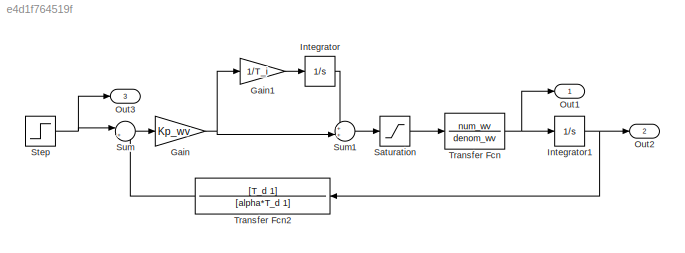
MODEL slx_e4d1f764519f
KIND model
CONFIG AbsTol = auto
CONFIG EnableMultiTasking = off
CONFIG FixedStep = auto
CONFIG MaxStep = auto
CONFIG MinStep = auto
CONFIG RelTol = 1e-3
CONFIG SampleTimeConstraint = Unconstrained
CONFIG Solver = VariableStepAuto
CONFIG SolverName = VariableStepAuto
CONFIG StartTime = 0.0
CONFIG StopTime = 20
BLOCK [Gain] Gain
  Gain = Kp_wv
  OutDataTypeStr = Inherit: Inherit via internal rule
  ParamDataTypeStr = Inherit: Inherit via internal rule
  SaturateOnIntegerOverflow = off
BLOCK [Gain] Gain1
  Gain = 1/T_i
  OutDataTypeStr = Inherit: Inherit via internal rule
  ParamDataTypeStr = Inherit: Inherit via internal rule
  SaturateOnIntegerOverflow = off
BLOCK [Integrator] Integrator
  LimitOutput = on
  LowerSaturationLimit = -3
  Ports = [1, 1]
  UpperSaturationLimit = +3
BLOCK [Integrator] Integrator1
  Ports = [1, 1]
BLOCK [Outport] Out1
  IconDisplay = Port number
  SignalName = Velocity
BLOCK [Outport] Out2
  IconDisplay = Port number
  Port = 2
  SignalName = Position
BLOCK [Outport] Out3
  IconDisplay = Port number
  Port = 3
  SignalName = Position ref
BLOCK [Saturate] Saturation
  InputPortMap = u0
  LowerLimit = -3
  Ports = [1, 1]
  UpperLimit = +3
BLOCK [Step] Step
  After = 0.5
  SampleTime = 0
  Time = 0
BLOCK [Sum] Sum
  IconShape = round
  InputSameDT = off
  Inputs = |+-
  OutDataTypeStr = Inherit: Inherit via internal rule
  Ports = [2, 1]
  SaturateOnIntegerOverflow = off
BLOCK [Sum] Sum1
  IconShape = round
  InputSameDT = off
  Inputs = ++|
  OutDataTypeStr = Inherit: Inherit via internal rule
  Ports = [2, 1]
  SaturateOnIntegerOverflow = off
BLOCK [TransferFcn] Transfer Fcn
  Denominator = denom_wv
  Numerator = num_wv
BLOCK [TransferFcn] Transfer Fcn2
  Denominator = [alpha*T_d 1]
  Numerator = [T_d 1]
LINE Gain1:1 -> Integrator:1
NET Gain:1 -> Gain1:1, Sum1:2
NET Integrator1:1 -> Out2:1, Transfer Fcn2:1
LINE Integrator:1 -> Sum1:1
LINE Saturation:1 -> Transfer Fcn:1
NET Step:1 -> Out3:1, Sum:1
LINE Sum1:1 -> Saturation:1
LINE Sum:1 -> Gain:1
LINE Transfer Fcn2:1 -> Sum:2
NET Transfer Fcn:1 -> Integrator1:1, Out1:1
note: NET lines group one-source signal fan-out (src -> all destinations, sorted); 1:1 wires keep LINE
